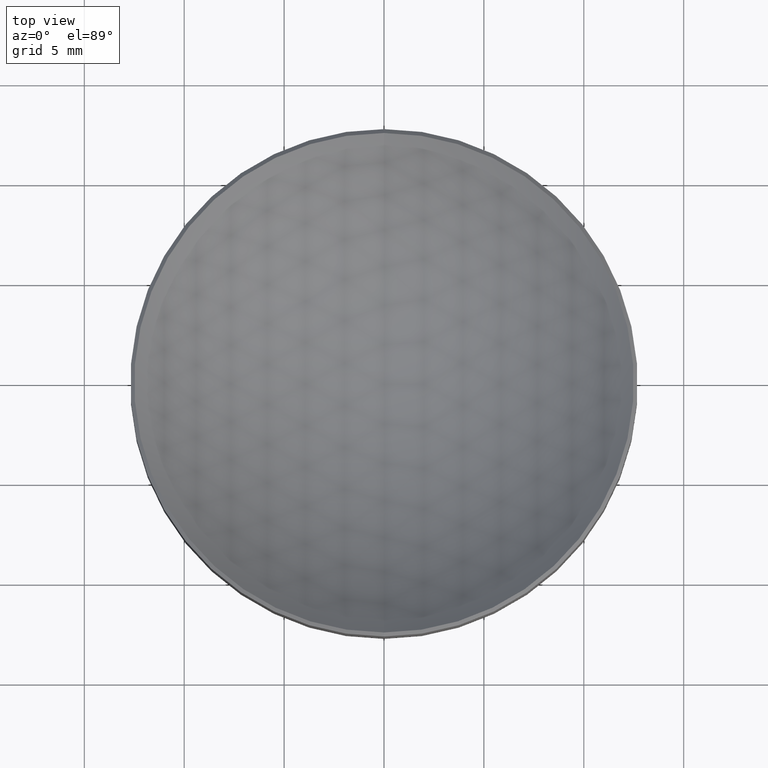
[diagram: clean part render]
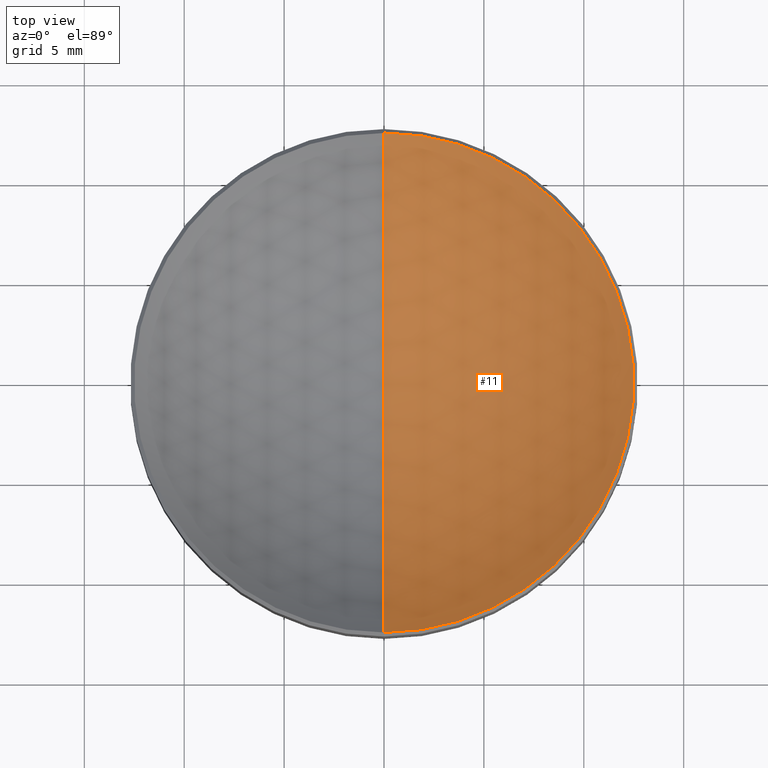
[diagram: same view with one face highlighted and labeled with its STEP entity id]
A machine part, top view. The second image highlights one B-rep face of the part: STEP entity #11.
In plain terms, the highlighted spherical surface has radius 17.35 mm.
Its self-contained STEP definition (entity closure, byte-faithful):
#11 = ADVANCED_FACE ( 'NONE', ( #112 ), #229, .F. ) ;
#16 = CARTESIAN_POINT ( 'NONE',  ( 0.0000000000000000000, 0.4922051220971562200, 0.1399751683140529900 ) ) ;
#26 = EDGE_CURVE ( 'NONE', #301, #235, #286, .T. ) ;
#29 = CARTESIAN_POINT ( 'NONE',  ( 0.0000000000000000000, -8.099691259872544800E-017, 0.1399751683140528200 ) ) ;
#42 = CARTESIAN_POINT ( 'NONE',  ( 0.0000000000000000000, -9.329186199394882900E-017, 0.6135994138430797000 ) ) ;
#59 = DIRECTION ( 'NONE',  ( 0.0000000000000000000, 1.000000000000000000, 3.122000213831229100E-016 ) ) ;
#69 = DIRECTION ( 'NONE',  ( -1.224646799147353200E-016, 1.000000000000000000, 0.0000000000000000000 ) ) ;
#88 = CARTESIAN_POINT ( 'NONE',  ( 6.075504134369456800E-017, -0.4922051220971563300, 0.1399751683140526800 ) ) ;
#89 = CIRCLE ( 'NONE', #279, 0.6830708661417321800 ) ;
#98 = DIRECTION ( 'NONE',  ( 1.000000000000000000, 0.0000000000000000000, -0.0000000000000000000 ) ) ;
#111 = ORIENTED_EDGE ( 'NONE', *, *, #26, .F. ) ;
#112 = FACE_OUTER_BOUND ( 'NONE', #163, .T. ) ;
#118 = VERTEX_POINT ( 'NONE', #281 ) ;
#120 = AXIS2_PLACEMENT_3D ( 'NONE', #29, #188, #59 ) ;
#125 = DIRECTION ( 'NONE',  ( 0.0000000000000000000, 0.0000000000000000000, 1.000000000000000000 ) ) ;
#133 = AXIS2_PLACEMENT_3D ( 'NONE', #42, #197, #69 ) ;
#149 = EDGE_CURVE ( 'NONE', #301, #118, #89, .T. ) ;
#163 = EDGE_LOOP ( 'NONE', ( #212, #111, #164 ) ) ;
#164 = ORIENTED_EDGE ( 'NONE', *, *, #149, .T. ) ;
#167 = AXIS2_PLACEMENT_3D ( 'NONE', #278, #98, #248 ) ;
#188 = DIRECTION ( 'NONE',  ( -0.0000000000000000000, 3.061515884555943100E-016, -1.000000000000000000 ) ) ;
#197 = DIRECTION ( 'NONE',  ( 1.000000000000000000, 1.224646799147353200E-016, 3.749275628560213600E-032 ) ) ;
#205 = EDGE_CURVE ( 'NONE', #235, #118, #214, .T. ) ;
#212 = ORIENTED_EDGE ( 'NONE', *, *, #205, .F. ) ;
#214 = CIRCLE ( 'NONE', #133, 0.6830708661417322900 ) ;
#229 = SPHERICAL_SURFACE ( 'NONE', #167, 0.6830708661417322900 ) ;
#235 = VERTEX_POINT ( 'NONE', #88 ) ;
#248 = DIRECTION ( 'NONE',  ( 0.0000000000000000000, 1.000000000000000000, 2.999521860478629000E-016 ) ) ;
#259 = DIRECTION ( 'NONE',  ( -1.000000000000000000, 0.0000000000000000000, 0.0000000000000000000 ) ) ;
#261 = CARTESIAN_POINT ( 'NONE',  ( 0.0000000000000000000, -9.329186199394882900E-017, 0.6135994138430797000 ) ) ;
#278 = CARTESIAN_POINT ( 'NONE',  ( 0.0000000000000000000, -9.329186199394882900E-017, 0.6135994138430797000 ) ) ;
#279 = AXIS2_PLACEMENT_3D ( 'NONE', #261, #259, #125 ) ;
#281 = CARTESIAN_POINT ( 'NONE',  ( 0.0000000000000000000, 1.576573961936453100E-016, -0.06947145229865260600 ) ) ;
#286 = CIRCLE ( 'NONE', #120, 0.4922051220971562800 ) ;
#301 = VERTEX_POINT ( 'NONE', #16 ) ;